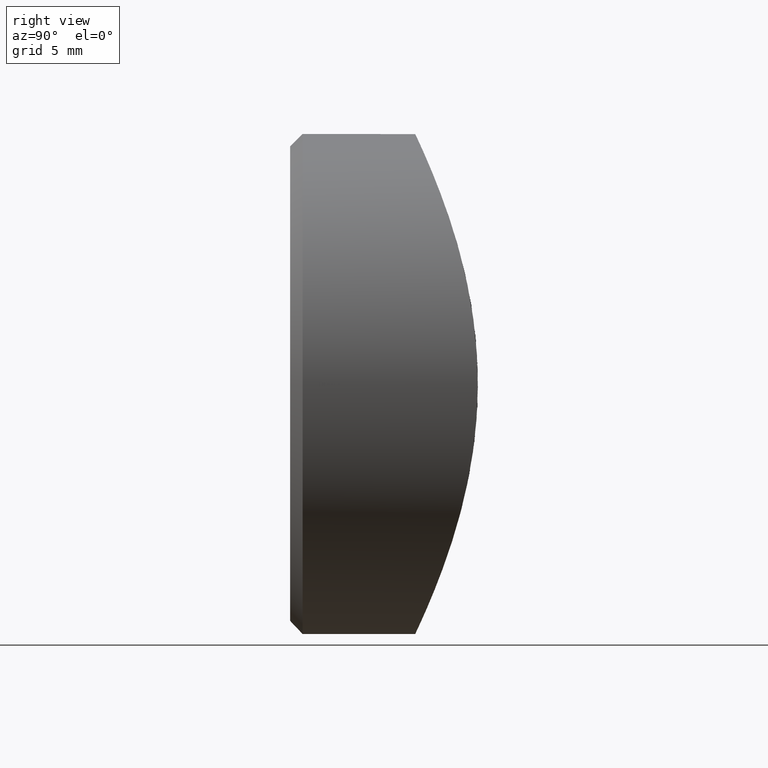
[diagram: clean part render]
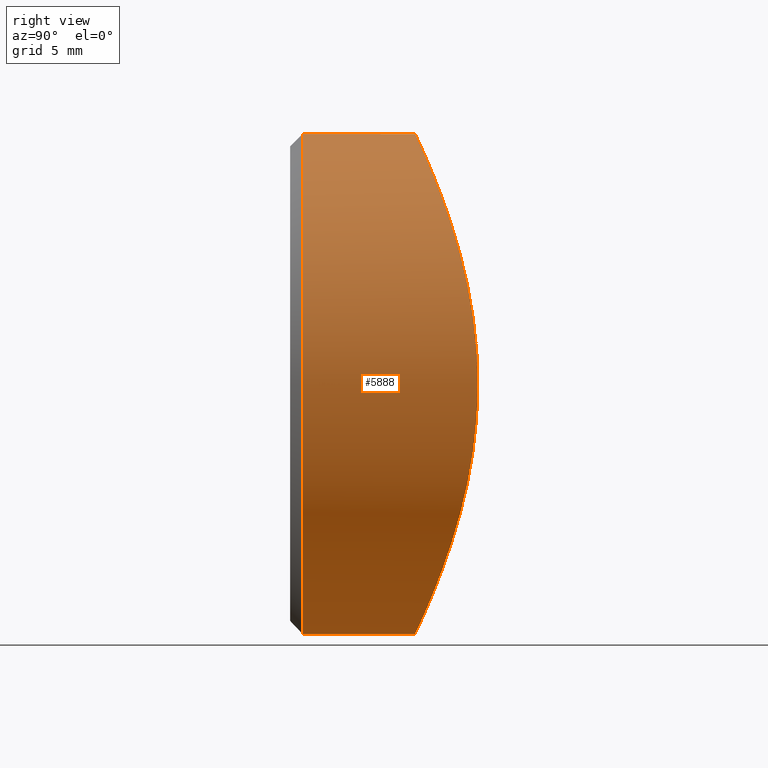
[diagram: same view with one face highlighted and labeled with its STEP entity id]
A machine part, right view. The second image highlights one B-rep face of the part: STEP entity #5888.
In plain terms, the highlighted cylindrical surface (bore or boss wall) has radius 10 mm, axis along (-0, -1, -0).
Its self-contained STEP definition (entity closure, byte-faithful):
#75 = CARTESIAN_POINT ( 'NONE',  ( -9.871121741946092598, 7.438167348797760425, -1.634491064771972813 ) ) ;
#97 = CARTESIAN_POINT ( 'NONE',  ( -6.621219789586854532, 6.054618108317042058, -7.522073562221399001 ) ) ;
#110 = CARTESIAN_POINT ( 'NONE',  ( -5.300468791646419930, 5.671422486342128089, 8.485845364758787923 ) ) ;
#158 = CARTESIAN_POINT ( 'NONE',  ( 8.670077701673779558, 6.849997241634834033, 5.024729755145497911 ) ) ;
#195 = CARTESIAN_POINT ( 'NONE',  ( -0.6403841539655698023, 5.007056384819236428, 9.985073048719455002 ) ) ;
#254 = CARTESIAN_POINT ( 'NONE',  ( -4.170323546639170154, 5.411951167596629197, -9.094828785750623368 ) ) ;
#330 = CARTESIAN_POINT ( 'NONE',  ( -5.321618406944577551, 5.676906872896086753, -8.472575861996761049 ) ) ;
#988 = CARTESIAN_POINT ( 'NONE',  ( 0.6834819277264077009, 5.000699334521317319, 9.998517408036180498 ) ) ;
#1028 = CARTESIAN_POINT ( 'NONE',  ( 9.356429260281085902, 7.175884993506532972, 3.544738196417629439 ) ) ;
#1069 = CARTESIAN_POINT ( 'NONE',  ( -8.474600290213579967, 6.766534184331052693, 5.318409874210489718 ) ) ;
#1105 = CARTESIAN_POINT ( 'NONE',  ( 5.041889264817294602, 5.606176586383350369, 8.642057260015144848 ) ) ;
#1237 = CARTESIAN_POINT ( 'NONE',  ( 1.246832498358330099E-15, 5.000000000000000888, -10.00000000000000178 ) ) ;
#1278 = CARTESIAN_POINT ( 'NONE',  ( -2.637974639928484688, 5.154739810496471897, -9.668325632801606062 ) ) ;
#1456 = AXIS2_PLACEMENT_3D ( 'NONE', #5936, #1494, #6944 ) ;
#1494 = DIRECTION ( 'NONE',  ( -0.000000000000000000, 1.000000000000000000, -0.000000000000000000 ) ) ;
#1709 = CARTESIAN_POINT ( 'NONE',  ( 0.000000000000000000, 12.00000000000000000, 0.000000000000000000 ) ) ;
#1752 = DIRECTION ( 'NONE',  ( 0.000000000000000000, 0.000000000000000000, -1.000000000000000000 ) ) ;
#1897 = CARTESIAN_POINT ( 'NONE',  ( 9.735572841129641830, 7.367472851206806617, -2.308150657904443737 ) ) ;
#1945 = CARTESIAN_POINT ( 'NONE',  ( 4.176749845393707083, 5.413280711043721105, 9.091781006383023112 ) ) ;
#1975 = CARTESIAN_POINT ( 'NONE',  ( 4.469624339306764504, 5.474444074636218183, 8.951438951896887986 ) ) ;
#2017 = CARTESIAN_POINT ( 'NONE',  ( 10.00062361897687602, 7.507019291661946703, 0.3122771294461810787 ) ) ;
#2062 = CARTESIAN_POINT ( 'NONE',  ( -0.3086700263047463810, 4.999667529079067307, 10.00070483970724311 ) ) ;
#2096 = CARTESIAN_POINT ( 'NONE',  ( -9.982414197745374196, 7.497250340530894341, 0.6795817576695518669 ) ) ;
#2110 = CARTESIAN_POINT ( 'NONE',  ( -1.344662000693810366, 5.032719335051607068, -9.931128578700633369 ) ) ;
#2486 = CARTESIAN_POINT ( 'NONE',  ( -8.487868160873849988, 6.772333384837534886, -5.297198140837263480 ) ) ;
#2646 = FACE_OUTER_BOUND ( 'NONE', #4233, .T. ) ;
#2679 = DIRECTION ( 'NONE',  ( -0.000000000000000000, -1.000000000000000000, -0.000000000000000000 ) ) ;
#2770 = CARTESIAN_POINT ( 'NONE',  ( 7.300951022269777546, 6.295376511724787960, -6.840990230692232110 ) ) ;
#2816 = CARTESIAN_POINT ( 'NONE',  ( 9.998696486463011013, 7.505988373424507643, -0.6826621914575076167 ) ) ;
#2850 = CARTESIAN_POINT ( 'NONE',  ( -5.837567185155436711, 5.817647988902905354, 8.125721526400734973 ) ) ;
#2890 = CARTESIAN_POINT ( 'NONE',  ( -9.915274281338117390, 7.461569405007761446, 1.340808776060025798 ) ) ;
#2936 = CARTESIAN_POINT ( 'NONE',  ( 9.984543149312612442, 7.498388573785178757, 0.6482319937424333434 ) ) ;
#2969 = CARTESIAN_POINT ( 'NONE',  ( -4.448730584124480636, 5.469936603685730425, 8.961865044067744535 ) ) ;
#3004 = CARTESIAN_POINT ( 'NONE',  ( 6.627858110228784128, 6.056929459342438093, 7.515623325812175182 ) ) ;
#3483 = EDGE_CURVE ( 'NONE', #9646, #9646, #4232, .T. ) ;
#3635 = CARTESIAN_POINT ( 'NONE',  ( 8.664137667471560889, 6.847288472075584664, -5.035304216957192658 ) ) ;
#3667 = CARTESIAN_POINT ( 'NONE',  ( 8.970256519379056215, 6.989266361900393854, -4.467206343612942554 ) ) ;
#3748 = CARTESIAN_POINT ( 'NONE',  ( 9.919135567911887108, 7.463615038567351867, 1.312271390979044217 ) ) ;
#3786 = CARTESIAN_POINT ( 'NONE',  ( -5.022853073952957992, 5.601512695762956184, 8.653159878084375478 ) ) ;
#3826 = CARTESIAN_POINT ( 'NONE',  ( -7.525093448978565469, 6.374569559294611665, 6.617394336226074536 ) ) ;
#3860 = CARTESIAN_POINT ( 'NONE',  ( -7.933274043123660135, 6.536405778511741538, 6.122131788245917861 ) ) ;
#3899 = CARTESIAN_POINT ( 'NONE',  ( 2.321123980530120701, 5.124894194744912923, 9.732602604701430238 ) ) ;
#4027 = CARTESIAN_POINT ( 'NONE',  ( -6.124496373301699492, 5.896344169951587055, -7.931405991317065585 ) ) ;
#4232 = CIRCLE ( 'NONE', #1456, 10.00000000000000000 ) ;
#4233 = EDGE_LOOP ( 'NONE', ( #11877 ) ) ;
#4479 = CARTESIAN_POINT ( 'NONE',  ( 1.246832498358330099E-15, 5.000000000000000888, -10.00000000000000178 ) ) ;
#4516 = CARTESIAN_POINT ( 'NONE',  ( 6.110589595650703032, 5.898053803922294058, -7.922442904969478228 ) ) ;
#4553 = CARTESIAN_POINT ( 'NONE',  ( 0.6710340642420712376, 5.000000000000000888, -10.00000000000000000 ) ) ;
#4596 = CARTESIAN_POINT ( 'NONE',  ( 9.346966378711947243, 7.171241061235839709, -3.569254565059492013 ) ) ;
#4686 = CARTESIAN_POINT ( 'NONE',  ( -1.305867936509204519, 5.037635768343875498, 9.920004263371616560 ) ) ;
#4723 = CARTESIAN_POINT ( 'NONE',  ( -9.483190860956495882, 7.237215608097833375, -3.239967857514304050 ) ) ;
#4745 = CARTESIAN_POINT ( 'NONE',  ( -7.538899342453332153, 6.379758836782010611, -6.602055655766885245 ) ) ;
#4761 = CARTESIAN_POINT ( 'NONE',  ( -3.238085567351744132, 5.239620037431595989, 9.484155180939833230 ) ) ;
#4796 = CARTESIAN_POINT ( 'NONE',  ( -4.150656756408731773, 5.407988792094663211, 9.103880925181769612 ) ) ;
#4830 = CARTESIAN_POINT ( 'NONE',  ( -6.598063982832353958, 6.051191461076736111, 7.521346445456650542 ) ) ;
#5498 = CARTESIAN_POINT ( 'NONE',  ( 5.038782628365568783, 5.599911345495826254, -8.662193419693034357 ) ) ;
#5526 = CYLINDRICAL_SURFACE ( 'NONE', #10764, 10.00000000000000000 ) ;
#5542 = CARTESIAN_POINT ( 'NONE',  ( 3.250913155897738882, 5.248297793313412285, -9.462627308533424042 ) ) ;
#5582 = CARTESIAN_POINT ( 'NONE',  ( 6.609289752536047224, 6.054886112957052369, -7.511437662391794667 ) ) ;
#5622 = CARTESIAN_POINT ( 'NONE',  ( -9.094906581114150512, 7.049485883213195692, 4.169930744656563881 ) ) ;
#5658 = CARTESIAN_POINT ( 'NONE',  ( -9.105824283226922944, 7.054674478537344307, -4.146207819050879095 ) ) ;
#5670 = EDGE_CURVE ( 'NONE', #10065, #10065, #9752, .T. ) ;
#5693 = CARTESIAN_POINT ( 'NONE',  ( -10.01631626969540179, 7.515441897995308373, 0.01857522702975937523 ) ) ;
#5731 = CARTESIAN_POINT ( 'NONE',  ( -8.655133622111810254, 6.846510984898412921, -5.019497939073056969 ) ) ;
#5767 = CARTESIAN_POINT ( 'NONE',  ( 7.936704401603059011, 6.540457806279503572, 6.092130047403447435 ) ) ;
#5888 = ADVANCED_FACE ( 'NONE', ( #10691, #2646 ), #5526, .T. ) ;
#5896 = CARTESIAN_POINT ( 'NONE',  ( -0.6710340642420615787, 5.000000000000000000, -10.00000000000000178 ) ) ;
#5936 = CARTESIAN_POINT ( 'NONE',  ( 0.000000000000000000, 0.5000000000000038858, 0.000000000000000000 ) ) ;
#6385 = CARTESIAN_POINT ( 'NONE',  ( 7.516793179015190951, 6.376120483921686954, -6.603161696563372374 ) ) ;
#6470 = CARTESIAN_POINT ( 'NONE',  ( 9.653127112434354729, 7.324910601010739875, -2.631725452114394237 ) ) ;
#6509 = CARTESIAN_POINT ( 'NONE',  ( 9.870155520532209792, 7.437661436552759575, 1.639681426772314099 ) ) ;
#6552 = CARTESIAN_POINT ( 'NONE',  ( -9.675507312051706776, 7.336114033460885864, -2.612849057063021174 ) ) ;
#6586 = CARTESIAN_POINT ( 'NONE',  ( 9.468641170223662584, 7.231700422013693341, 3.233088247809588811 ) ) ;
#6622 = CARTESIAN_POINT ( 'NONE',  ( 5.322760873410799398, 5.677170306462461014, 8.471968775020462417 ) ) ;
#6662 = CARTESIAN_POINT ( 'NONE',  ( 8.977166742959017398, 6.992466103092600527, 4.454461449407236984 ) ) ;
#6944 = DIRECTION ( 'NONE',  ( 0.000000000000000000, 0.000000000000000000, 1.000000000000000000 ) ) ;
#7028 = CARTESIAN_POINT ( 'NONE',  ( 0.000000000000000000, 5.000000000000000888, -10.00000000000000000 ) ) ;
#7388 = CARTESIAN_POINT ( 'NONE',  ( 1.329035019492096570, 5.031761103709628813, -9.933157151574397048 ) ) ;
#7421 = CARTESIAN_POINT ( 'NONE',  ( 7.308550278609132533, 6.298164875850008393, 6.832888635214741768 ) ) ;
#7462 = CARTESIAN_POINT ( 'NONE',  ( -9.472294849355284541, 7.231771381790707665, 3.270813786289183955 ) ) ;
#7508 = CARTESIAN_POINT ( 'NONE',  ( -6.097048751048079751, 5.893968127990157235, 7.932912277434811088 ) ) ;
#7547 = CARTESIAN_POINT ( 'NONE',  ( -1.636967487498483642, 5.060784607803097579, 9.870649787743911219 ) ) ;
#7580 = CARTESIAN_POINT ( 'NONE',  ( -8.954484395985865319, 6.983174481526104316, 4.463650138016773461 ) ) ;
#7708 = CARTESIAN_POINT ( 'NONE',  ( -5.044287161887478277, 5.606742403789686691, -8.640721018154088995 ) ) ;
#7860 = ORIENTED_EDGE ( 'NONE', *, *, #3483, .T. ) ;
#8271 = CARTESIAN_POINT ( 'NONE',  ( 2.297693411830911359, 5.122386923596092601, -9.738022964414094318 ) ) ;
#8315 = CARTESIAN_POINT ( 'NONE',  ( 9.932088329190989384, 7.469931905061218735, -1.337674638786009007 ) ) ;
#8337 = CARTESIAN_POINT ( 'NONE',  ( -7.948877540109218209, 6.542739510362991062, -6.101819572144869142 ) ) ;
#8356 = CARTESIAN_POINT ( 'NONE',  ( 3.270760802825264157, 5.251432486489646223, 9.455683876922678976 ) ) ;
#8400 = CARTESIAN_POINT ( 'NONE',  ( 1.340954340740365014, 5.032273471182492131, 9.932095520693577484 ) ) ;
#8438 = CARTESIAN_POINT ( 'NONE',  ( 6.132600853380594685, 5.898657813953479767, 7.925614155057910004 ) ) ;
#8480 = CARTESIAN_POINT ( 'NONE',  ( -2.609920523246684887, 5.151183532710852830, 9.676046403981306554 ) ) ;
#8523 = CARTESIAN_POINT ( 'NONE',  ( -9.984883444086820603, 7.498571262415985927, -0.6419960271529254747 ) ) ;
#9182 = CARTESIAN_POINT ( 'NONE',  ( 8.121236675598366261, 6.616226203565731545, -5.843877768953393392 ) ) ;
#9223 = CARTESIAN_POINT ( 'NONE',  ( 7.926479567013462457, 6.536345699799423592, -6.105312912600718178 ) ) ;
#9298 = CARTESIAN_POINT ( 'NONE',  ( -6.839951502429697960, 6.132271071738419899, 7.302006453616295190 ) ) ;
#9376 = CARTESIAN_POINT ( 'NONE',  ( 2.643370765987183901, 5.163057539392187145, 9.649892476246456852 ) ) ;
#9414 = CARTESIAN_POINT ( 'NONE',  ( 8.130565604776341715, 6.620109385599774576, 5.830818301298218209 ) ) ;
#9646 = VERTEX_POINT ( 'NONE', #9786 ) ;
#9752 = B_SPLINE_CURVE_WITH_KNOTS ( 'NONE', 3,
 ( #4479, #4553, #7388, #8271, #10169, #5542, #10914, #10047, #5498, #11074, #4516, #5582, #11883, #2770, #6385, #9223, #9182, #3635, #3667, #4596, #11967, #6470, #1897, #8315, #2816, #2017, #2936, #3748, #6509, #10208, #11152, #6586, #1028, #6662, #158, #9414, #5767, #10356, #7421, #3004, #8438, #6622, #1105, #1975, #1945, #11268, #8356, #9376, #3899, #8400, #988, #2062, #195, #4686, #7547, #8480, #4761, #4796, #2969, #3786, #110, #2850, #7508, #4830, #9298, #3826, #3860, #1069, #11114, #7580, #5622, #7462, #11193, #10285, #2890, #2096, #5693, #8523, #10320, #75, #6552, #4723, #5658, #11232, #5731, #2486, #8337, #4745, #97, #4027, #330, #7708, #11281, #254, #11402, #1278, #2110, #5896, #1237 ),
 .UNSPECIFIED., .T., .F.,
 ( 4, 2, 2, 2, 2, 2, 2, 2, 2, 2, 2, 2, 2, 2, 2, 2, 2, 2, 2, 2, 2, 2, 2, 2, 2, 2, 2, 2, 2, 2, 2, 2, 2, 2, 2, 2, 2, 2, 1, 2, 2, 2, 2, 2, 2, 2, 2, 2, 2, 4 ),
 ( 0.000000000000000000, 0.001982588497940428445, 0.002973882746910642451, 0.003965176995880856890, 0.005947765493821282300, 0.006939059742791493270, 0.007930353991761705107, 0.008921648240731916077, 0.009912942489702130516, 0.01189553098764255593, 0.01288682523661276516, 0.01387811948558297613, 0.01586070798352339981, 0.01685200223249360904, 0.01784329648146381828, 0.01883459073043403098, 0.01982588497940424022, 0.02180847347734465869, 0.02279976772631486792, 0.02379106197528507716, 0.02577365047322548175, 0.02676494472219568752, 0.02775623897116588981, 0.02874753322013609211, 0.02973882746910629787, 0.03172141596704670247, 0.03271271021601690476, 0.03370400446498710706, 0.03568659296292751165, 0.03667788721189771395, 0.03766918146086791624, 0.03866047570983811160, 0.03965176995880830696, 0.04163435845674871155, 0.04262565270571890691, 0.04361694695468911614, 0.04559953545262950686, 0.04659082970159971610, 0.04758212395056991145, 0.04857341819954011375, 0.04956471244851031605, 0.05154730094645071370, 0.05253859519542091600, 0.05352988944439111135, 0.05551247794233150901, 0.05749506644027191360, 0.05848636068924210896, 0.05947765493821231819, 0.06146024343615270891, 0.06344283193409311350 ),
 .UNSPECIFIED. ) ;
#9786 = CARTESIAN_POINT ( 'NONE',  ( 0.000000000000000000, 0.5000000000000038858, 10.00000000000000000 ) ) ;
#10047 = CARTESIAN_POINT ( 'NONE',  ( 4.467945790593073063, 5.467071443813754428, -8.970271105152139768 ) ) ;
#10065 = VERTEX_POINT ( 'NONE', #7028 ) ;
#10169 = CARTESIAN_POINT ( 'NONE',  ( 2.617500944891943959, 5.159777793275222457, -9.657040992502892607 ) ) ;
#10208 = CARTESIAN_POINT ( 'NONE',  ( 9.740840076068996822, 7.370200399861925433, 2.285729597577681904 ) ) ;
#10285 = CARTESIAN_POINT ( 'NONE',  ( -9.864538830927537916, 7.434700915021011269, 1.673526740888294118 ) ) ;
#10320 = CARTESIAN_POINT ( 'NONE',  ( -9.920380355499624159, 7.464275092189532224, -1.302347838749813747 ) ) ;
#10356 = CARTESIAN_POINT ( 'NONE',  ( 7.524993111475469121, 6.379219119889636858, 6.593921742419148302 ) ) ;
#10691 = FACE_OUTER_BOUND ( 'NONE', #11923, .T. ) ;
#10764 = AXIS2_PLACEMENT_3D ( 'NONE', #1709, #2679, #1752 ) ;
#10914 = CARTESIAN_POINT ( 'NONE',  ( 3.562531639691298491, 5.299220472860379338, -9.349622673568159570 ) ) ;
#11074 = CARTESIAN_POINT ( 'NONE',  ( 5.848381953352687290, 5.820729299971598714, -8.118014525222383426 ) ) ;
#11114 = CARTESIAN_POINT ( 'NONE',  ( -8.643691189815111642, 6.841390121691677706, 5.039202909953537812 ) ) ;
#11152 = CARTESIAN_POINT ( 'NONE',  ( 9.660501931672069276, 7.328692230826976406, 2.604367035718911261 ) ) ;
#11193 = CARTESIAN_POINT ( 'NONE',  ( -9.665881770994383615, 7.331162357698862486, 2.647640834127692244 ) ) ;
#11232 = CARTESIAN_POINT ( 'NONE',  ( -8.964253897605775734, 6.987737584200872654, -4.443967780737010820 ) ) ;
#11268 = CARTESIAN_POINT ( 'NONE',  ( 3.577317506686146231, 5.301776689746560578, 9.343902856696459480 ) ) ;
#11281 = CARTESIAN_POINT ( 'NONE',  ( -4.469110848030660499, 5.474312083226977599, -8.951756303271846349 ) ) ;
#11402 = CARTESIAN_POINT ( 'NONE',  ( -3.263228641391718643, 5.243625556834441426, -9.475303443008341375 ) ) ;
#11877 = ORIENTED_EDGE ( 'NONE', *, *, #5670, .T. ) ;
#11883 = CARTESIAN_POINT ( 'NONE',  ( 6.847198858430585844, 6.134761655223571530, -7.295128577284677895 ) ) ;
#11923 = EDGE_LOOP ( 'NONE', ( #7860 ) ) ;
#11967 = CARTESIAN_POINT ( 'NONE',  ( 9.458677917299707971, 7.226722082743875397, -3.262246765790242531 ) ) ;